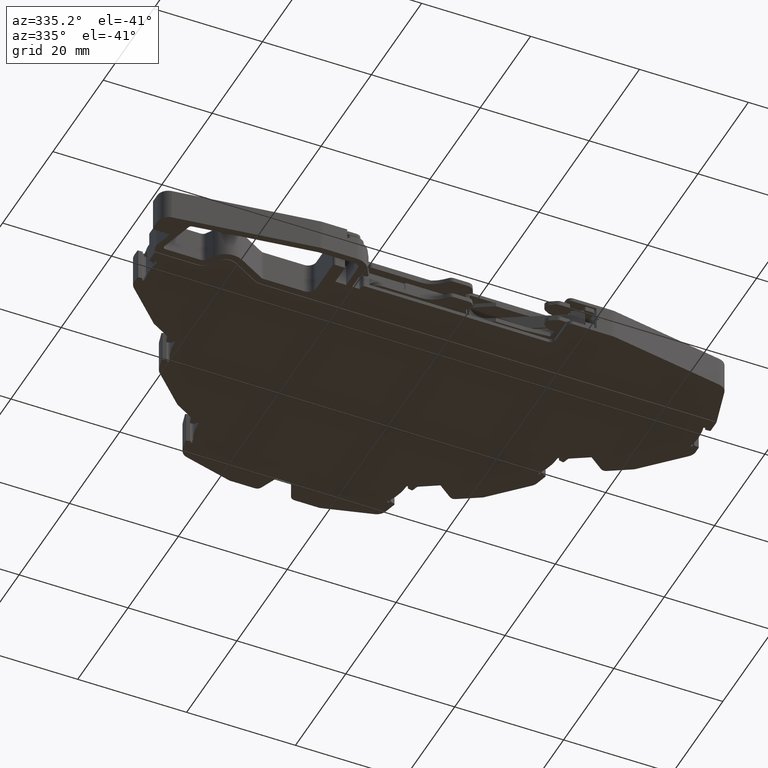
[diagram: clean part render]
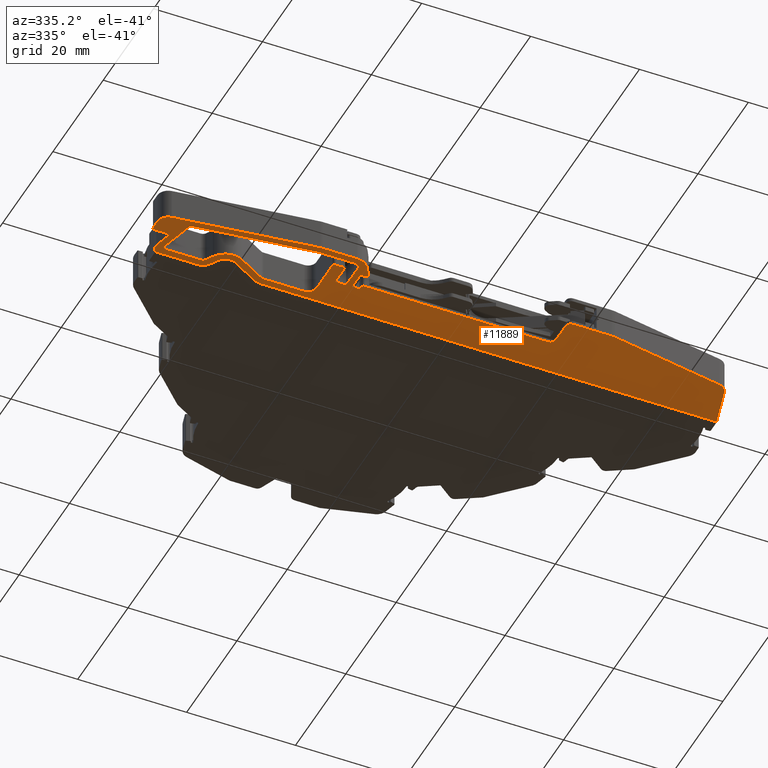
[diagram: same view with one face highlighted and labeled with its STEP entity id]
A machine part, auxiliary view. The second image highlights one B-rep face of the part: STEP entity #11889.
In plain terms, the highlighted planar face has unit normal (0, 0, -1).
Its self-contained STEP definition (entity closure, byte-faithful):
#166 = AXIS2_PLACEMENT_3D ( 'NONE', #25339, #25322, #25329 ) ;
#659 = CIRCLE ( 'NONE', #693, 0.2999995595467930300 ) ;
#693 = AXIS2_PLACEMENT_3D ( 'NONE', #2815, #2849, #2812 ) ;
#2812 = DIRECTION ( 'NONE',  ( -1.000000000000000000, 2.197319628958880000E-013, 0.0000000000000000000 ) ) ;
#2815 = CARTESIAN_POINT ( 'NONE',  ( 241.6200651861885000, 8.621114410905040200, 0.05499999999999949400 ) ) ;
#2849 = DIRECTION ( 'NONE',  ( -0.0000000000000000000, -0.0000000000000000000, 1.000000000000000000 ) ) ;
#3396 = EDGE_CURVE ( 'NONE', #7269, #7301, #14761, .T. ) ;
#6287 = EDGE_LOOP ( 'NONE', ( #7179, #7168, #7187, #7162, #7165, #7169, #7190, #7171, #7159, #7170, #7195, #7191, #7154, #7157, #7196, #7174, #7160, #7161, #7211, #7199, #6711, #6713, #6707, #6699, #6726, #6735, #6680, #6677, #6717, #6692, #6736, #6684, #6731, #6698, #6720, #6721 ) ) ;
#6330 = EDGE_LOOP ( 'NONE', ( #6714, #6751, #6785, #6766, #6747, #6716, #6724, #6790, #6746, #6694, #6725, #6683, #6787, #6688, #6695, #6791, #6753, #6789, #6687, #6764, #6729 ) ) ;
#6677 = ORIENTED_EDGE ( 'NONE', *, *, #3396, .F. ) ;
#6680 = ORIENTED_EDGE ( 'NONE', *, *, #10632, .F. ) ;
#6683 = ORIENTED_EDGE ( 'NONE', *, *, #10714, .F. ) ;
#6684 = ORIENTED_EDGE ( 'NONE', *, *, #10649, .F. ) ;
#6687 = ORIENTED_EDGE ( 'NONE', *, *, #10696, .F. ) ;
#6688 = ORIENTED_EDGE ( 'NONE', *, *, #10688, .F. ) ;
#6692 = ORIENTED_EDGE ( 'NONE', *, *, #10567, .F. ) ;
#6694 = ORIENTED_EDGE ( 'NONE', *, *, #10711, .F. ) ;
#6695 = ORIENTED_EDGE ( 'NONE', *, *, #10729, .F. ) ;
#6698 = ORIENTED_EDGE ( 'NONE', *, *, #10634, .F. ) ;
#6699 = ORIENTED_EDGE ( 'NONE', *, *, #10565, .F. ) ;
#6707 = ORIENTED_EDGE ( 'NONE', *, *, #10656, .T. ) ;
#6711 = ORIENTED_EDGE ( 'NONE', *, *, #10672, .F. ) ;
#6713 = ORIENTED_EDGE ( 'NONE', *, *, #10646, .F. ) ;
#6714 = ORIENTED_EDGE ( 'NONE', *, *, #10622, .F. ) ;
#6716 = ORIENTED_EDGE ( 'NONE', *, *, #10650, .F. ) ;
#6717 = ORIENTED_EDGE ( 'NONE', *, *, #10626, .F. ) ;
#6720 = ORIENTED_EDGE ( 'NONE', *, *, #10653, .F. ) ;
#6721 = ORIENTED_EDGE ( 'NONE', *, *, #10677, .F. ) ;
#6724 = ORIENTED_EDGE ( 'NONE', *, *, #10655, .F. ) ;
#6725 = ORIENTED_EDGE ( 'NONE', *, *, #10685, .T. ) ;
#6726 = ORIENTED_EDGE ( 'NONE', *, *, #10618, .F. ) ;
#6729 = ORIENTED_EDGE ( 'NONE', *, *, #10681, .F. ) ;
#6731 = ORIENTED_EDGE ( 'NONE', *, *, #10647, .T. ) ;
#6735 = ORIENTED_EDGE ( 'NONE', *, *, #10630, .F. ) ;
#6736 = ORIENTED_EDGE ( 'NONE', *, *, #10574, .F. ) ;
#6746 = ORIENTED_EDGE ( 'NONE', *, *, #10720, .F. ) ;
#6747 = ORIENTED_EDGE ( 'NONE', *, *, #10659, .F. ) ;
#6751 = ORIENTED_EDGE ( 'NONE', *, *, #10615, .T. ) ;
#6753 = ORIENTED_EDGE ( 'NONE', *, *, #10687, .T. ) ;
#6764 = ORIENTED_EDGE ( 'NONE', *, *, #10680, .F. ) ;
#6766 = ORIENTED_EDGE ( 'NONE', *, *, #10668, .F. ) ;
#6785 = ORIENTED_EDGE ( 'NONE', *, *, #10654, .T. ) ;
#6787 = ORIENTED_EDGE ( 'NONE', *, *, #10712, .F. ) ;
#6789 = ORIENTED_EDGE ( 'NONE', *, *, #10709, .F. ) ;
#6790 = ORIENTED_EDGE ( 'NONE', *, *, #10726, .F. ) ;
#6791 = ORIENTED_EDGE ( 'NONE', *, *, #10692, .F. ) ;
#7154 = ORIENTED_EDGE ( 'NONE', *, *, #10667, .F. ) ;
#7157 = ORIENTED_EDGE ( 'NONE', *, *, #10633, .T. ) ;
#7159 = ORIENTED_EDGE ( 'NONE', *, *, #10665, .F. ) ;
#7160 = ORIENTED_EDGE ( 'NONE', *, *, #12394, .F. ) ;
#7161 = ORIENTED_EDGE ( 'NONE', *, *, #10645, .F. ) ;
#7162 = ORIENTED_EDGE ( 'NONE', *, *, #10623, .F. ) ;
#7165 = ORIENTED_EDGE ( 'NONE', *, *, #10658, .F. ) ;
#7168 = ORIENTED_EDGE ( 'NONE', *, *, #10669, .T. ) ;
#7169 = ORIENTED_EDGE ( 'NONE', *, *, #10625, .F. ) ;
#7170 = ORIENTED_EDGE ( 'NONE', *, *, #10616, .F. ) ;
#7171 = ORIENTED_EDGE ( 'NONE', *, *, #10635, .T. ) ;
#7174 = ORIENTED_EDGE ( 'NONE', *, *, #10670, .F. ) ;
#7179 = ORIENTED_EDGE ( 'NONE', *, *, #10664, .F. ) ;
#7187 = ORIENTED_EDGE ( 'NONE', *, *, #10663, .F. ) ;
#7190 = ORIENTED_EDGE ( 'NONE', *, *, #10570, .F. ) ;
#7191 = ORIENTED_EDGE ( 'NONE', *, *, #10637, .F. ) ;
#7195 = ORIENTED_EDGE ( 'NONE', *, *, #10619, .F. ) ;
#7196 = ORIENTED_EDGE ( 'NONE', *, *, #10643, .F. ) ;
#7199 = ORIENTED_EDGE ( 'NONE', *, *, #10617, .F. ) ;
#7211 = ORIENTED_EDGE ( 'NONE', *, *, #10673, .F. ) ;
#7269 = VERTEX_POINT ( 'NONE', #18029 ) ;
#7301 = VERTEX_POINT ( 'NONE', #18046 ) ;
#7340 = VERTEX_POINT ( 'NONE', #18090 ) ;
#7345 = VERTEX_POINT ( 'NONE', #18110 ) ;
#7473 = VERTEX_POINT ( 'NONE', #18220 ) ;
#7474 = VERTEX_POINT ( 'NONE', #18241 ) ;
#7475 = VERTEX_POINT ( 'NONE', #18195 ) ;
#7488 = VERTEX_POINT ( 'NONE', #18202 ) ;
#7496 = VERTEX_POINT ( 'NONE', #18212 ) ;
#7497 = VERTEX_POINT ( 'NONE', #18231 ) ;
#7504 = VERTEX_POINT ( 'NONE', #18246 ) ;
#7509 = VERTEX_POINT ( 'NONE', #18235 ) ;
#7510 = VERTEX_POINT ( 'NONE', #18236 ) ;
#7513 = VERTEX_POINT ( 'NONE', #18192 ) ;
#7536 = VERTEX_POINT ( 'NONE', #18252 ) ;
#7537 = VERTEX_POINT ( 'NONE', #18289 ) ;
#7538 = VERTEX_POINT ( 'NONE', #18290 ) ;
#7544 = VERTEX_POINT ( 'NONE', #18310 ) ;
#7546 = VERTEX_POINT ( 'NONE', #18280 ) ;
#7547 = VERTEX_POINT ( 'NONE', #18282 ) ;
#7548 = VERTEX_POINT ( 'NONE', #18276 ) ;
#7553 = VERTEX_POINT ( 'NONE', #18308 ) ;
#7554 = VERTEX_POINT ( 'NONE', #18285 ) ;
#7555 = VERTEX_POINT ( 'NONE', #18306 ) ;
#7560 = VERTEX_POINT ( 'NONE', #18298 ) ;
#7561 = VERTEX_POINT ( 'NONE', #18273 ) ;
#7563 = VERTEX_POINT ( 'NONE', #18313 ) ;
#7567 = VERTEX_POINT ( 'NONE', #18302 ) ;
#7568 = VERTEX_POINT ( 'NONE', #18266 ) ;
#7570 = VERTEX_POINT ( 'NONE', #18251 ) ;
#7572 = VERTEX_POINT ( 'NONE', #18262 ) ;
#7574 = VERTEX_POINT ( 'NONE', #18258 ) ;
#7577 = VERTEX_POINT ( 'NONE', #18268 ) ;
#7578 = VERTEX_POINT ( 'NONE', #18261 ) ;
#7579 = VERTEX_POINT ( 'NONE', #18270 ) ;
#7581 = VERTEX_POINT ( 'NONE', #18272 ) ;
#7583 = VERTEX_POINT ( 'NONE', #18326 ) ;
#7584 = VERTEX_POINT ( 'NONE', #18325 ) ;
#7588 = VERTEX_POINT ( 'NONE', #18344 ) ;
#7594 = VERTEX_POINT ( 'NONE', #18364 ) ;
#7595 = VERTEX_POINT ( 'NONE', #18331 ) ;
#7596 = VERTEX_POINT ( 'NONE', #18333 ) ;
#7597 = VERTEX_POINT ( 'NONE', #18360 ) ;
#7598 = VERTEX_POINT ( 'NONE', #18328 ) ;
#7606 = VERTEX_POINT ( 'NONE', #18334 ) ;
#7614 = VERTEX_POINT ( 'NONE', #18350 ) ;
#7616 = VERTEX_POINT ( 'NONE', #18368 ) ;
#7618 = VERTEX_POINT ( 'NONE', #18370 ) ;
#7623 = VERTEX_POINT ( 'NONE', #18355 ) ;
#7624 = VERTEX_POINT ( 'NONE', #18372 ) ;
#7626 = VERTEX_POINT ( 'NONE', #18378 ) ;
#7629 = VERTEX_POINT ( 'NONE', #18349 ) ;
#7630 = VERTEX_POINT ( 'NONE', #18347 ) ;
#7642 = VERTEX_POINT ( 'NONE', #18348 ) ;
#7646 = VERTEX_POINT ( 'NONE', #18432 ) ;
#7650 = VERTEX_POINT ( 'NONE', #18416 ) ;
#7654 = VERTEX_POINT ( 'NONE', #18439 ) ;
#10565 = EDGE_CURVE ( 'NONE', #7488, #7537, #19617, .T. ) ;
#10567 = EDGE_CURVE ( 'NONE', #7597, #7574, #19620, .T. ) ;
#10570 = EDGE_CURVE ( 'NONE', #7547, #7475, #19665, .T. ) ;
#10574 = EDGE_CURVE ( 'NONE', #7583, #7597, #15579, .T. ) ;
#10615 = EDGE_CURVE ( 'NONE', #7510, #7560, #15651, .T. ) ;
#10616 = EDGE_CURVE ( 'NONE', #7496, #7563, #15648, .T. ) ;
#10617 = EDGE_CURVE ( 'NONE', #7598, #7497, #19822, .T. ) ;
#10618 = EDGE_CURVE ( 'NONE', #7544, #7488, #15655, .T. ) ;
#10619 = EDGE_CURVE ( 'NONE', #7509, #7496, #19820, .T. ) ;
#10622 = EDGE_CURVE ( 'NONE', #7510, #7650, #19826, .T. ) ;
#10623 = EDGE_CURVE ( 'NONE', #7584, #7554, #15672, .T. ) ;
#10625 = EDGE_CURVE ( 'NONE', #7475, #7572, #15677, .T. ) ;
#10626 = EDGE_CURVE ( 'NONE', #7574, #7269, #15678, .T. ) ;
#10630 = EDGE_CURVE ( 'NONE', #7555, #7544, #19882, .T. ) ;
#10632 = EDGE_CURVE ( 'NONE', #7301, #7555, #19876, .T. ) ;
#10633 = EDGE_CURVE ( 'NONE', #7513, #7504, #15675, .T. ) ;
#10634 = EDGE_CURVE ( 'NONE', #7568, #7548, #19850, .T. ) ;
#10635 = EDGE_CURVE ( 'NONE', #7547, #7546, #15633, .T. ) ;
#10637 = EDGE_CURVE ( 'NONE', #7536, #7509, #19868, .T. ) ;
#10643 = EDGE_CURVE ( 'NONE', #7595, #7504, #19913, .T. ) ;
#10645 = EDGE_CURVE ( 'NONE', #7561, #7345, #19916, .T. ) ;
#10646 = EDGE_CURVE ( 'NONE', #7473, #7594, #19891, .T. ) ;
#10647 = EDGE_CURVE ( 'NONE', #7596, #7548, #15726, .T. ) ;
#10649 = EDGE_CURVE ( 'NONE', #7596, #7583, #19903, .T. ) ;
#10650 = EDGE_CURVE ( 'NONE', #7474, #7614, #15697, .T. ) ;
#10653 = EDGE_CURVE ( 'NONE', #7579, #7568, #15733, .T. ) ;
#10654 = EDGE_CURVE ( 'NONE', #7560, #7616, #19907, .T. ) ;
#10655 = EDGE_CURVE ( 'NONE', #7553, #7474, #19895, .T. ) ;
#10656 = EDGE_CURVE ( 'NONE', #7473, #7537, #15740, .T. ) ;
#10658 = EDGE_CURVE ( 'NONE', #7572, #7584, #19973, .T. ) ;
#10659 = EDGE_CURVE ( 'NONE', #7614, #7629, #19966, .T. ) ;
#10663 = EDGE_CURVE ( 'NONE', #7554, #7570, #19965, .T. ) ;
#10664 = EDGE_CURVE ( 'NONE', #7567, #7538, #19936, .T. ) ;
#10665 = EDGE_CURVE ( 'NONE', #7563, #7546, #19975, .T. ) ;
#10667 = EDGE_CURVE ( 'NONE', #7513, #7536, #19952, .T. ) ;
#10668 = EDGE_CURVE ( 'NONE', #7629, #7616, #15706, .T. ) ;
#10669 = EDGE_CURVE ( 'NONE', #7567, #7570, #15701, .T. ) ;
#10670 = EDGE_CURVE ( 'NONE', #7340, #7595, #15696, .T. ) ;
#10672 = EDGE_CURVE ( 'NONE', #7594, #7598, #15742, .T. ) ;
#10673 = EDGE_CURVE ( 'NONE', #7497, #7561, #15737, .T. ) ;
#10677 = EDGE_CURVE ( 'NONE', #7538, #7579, #19982, .T. ) ;
#10680 = EDGE_CURVE ( 'NONE', #7646, #7626, #20008, .T. ) ;
#10681 = EDGE_CURVE ( 'NONE', #7650, #7646, #15705, .T. ) ;
#10685 = EDGE_CURVE ( 'NONE', #7624, #7578, #15775, .T. ) ;
#10687 = EDGE_CURVE ( 'NONE', #7606, #7630, #15767, .T. ) ;
#10688 = EDGE_CURVE ( 'NONE', #7577, #7654, #20032, .T. ) ;
#10692 = EDGE_CURVE ( 'NONE', #7606, #7588, #20026, .T. ) ;
#10696 = EDGE_CURVE ( 'NONE', #7626, #7642, #15774, .T. ) ;
#10709 = EDGE_CURVE ( 'NONE', #7642, #7630, #20067, .T. ) ;
#10711 = EDGE_CURVE ( 'NONE', #7624, #7618, #20065, .T. ) ;
#10712 = EDGE_CURVE ( 'NONE', #7654, #7623, #15812, .T. ) ;
#10714 = EDGE_CURVE ( 'NONE', #7623, #7578, #20130, .T. ) ;
#10720 = EDGE_CURVE ( 'NONE', #7618, #7581, #20113, .T. ) ;
#10726 = EDGE_CURVE ( 'NONE', #7581, #7553, #20126, .T. ) ;
#10729 = EDGE_CURVE ( 'NONE', #7588, #7577, #15855, .T. ) ;
#11889 = ADVANCED_FACE ( 'NONE', ( #25314, #25304 ), #25333, .T. ) ;
#12394 = EDGE_CURVE ( 'NONE', #7345, #7340, #659, .T. ) ;
#14761 = CIRCLE ( 'NONE', #14766, 2.000006238983387300 ) ;
#14766 = AXIS2_PLACEMENT_3D ( 'NONE', #16008, #16040, #16050 ) ;
#15568 = VECTOR ( 'NONE', #19636, 1000.000000000000000 ) ;
#15579 = CIRCLE ( 'NONE', #15604, 2.299999999999996300 ) ;
#15602 = VECTOR ( 'NONE', #19672, 1000.000000000000000 ) ;
#15604 = AXIS2_PLACEMENT_3D ( 'NONE', #19689, #19682, #19699 ) ;
#15617 = VECTOR ( 'NONE', #19703, 1000.000000000000000 ) ;
#15633 = CIRCLE ( 'NONE', #15635, 1.000000000000000900 ) ;
#15635 = AXIS2_PLACEMENT_3D ( 'NONE', #19865, #19887, #19845 ) ;
#15638 = VECTOR ( 'NONE', #19866, 1000.000000000000000 ) ;
#15640 = VECTOR ( 'NONE', #19863, 1000.000000000000100 ) ;
#15645 = AXIS2_PLACEMENT_3D ( 'NONE', #19823, #19830, #19824 ) ;
#15648 = CIRCLE ( 'NONE', #15653, 0.5000000000000004400 ) ;
#15651 = CIRCLE ( 'NONE', #15645, 0.5000000000000004400 ) ;
#15653 = AXIS2_PLACEMENT_3D ( 'NONE', #19829, #19813, #19814 ) ;
#15655 = CIRCLE ( 'NONE', #15666, 0.5000012763415606600 ) ;
#15657 = VECTOR ( 'NONE', #19877, 1000.000000000000100 ) ;
#15666 = AXIS2_PLACEMENT_3D ( 'NONE', #19801, #19832, #19840 ) ;
#15667 = VECTOR ( 'NONE', #19804, 1000.000000000000000 ) ;
#15668 = VECTOR ( 'NONE', #19837, 1000.000000000000100 ) ;
#15672 = CIRCLE ( 'NONE', #15691, 4.999999998846815800 ) ;
#15673 = AXIS2_PLACEMENT_3D ( 'NONE', #19842, #19844, #19803 ) ;
#15674 = AXIS2_PLACEMENT_3D ( 'NONE', #19838, #19811, #19859 ) ;
#15675 = CIRCLE ( 'NONE', #15683, 0.3000000000000502300 ) ;
#15677 = CIRCLE ( 'NONE', #15673, 1.000000000000000900 ) ;
#15678 = CIRCLE ( 'NONE', #15674, 2.000006238983387300 ) ;
#15682 = VECTOR ( 'NONE', #19861, 1000.000000000000000 ) ;
#15683 = AXIS2_PLACEMENT_3D ( 'NONE', #19858, #19879, #19862 ) ;
#15689 = VECTOR ( 'NONE', #19828, 1000.000000000000000 ) ;
#15691 = AXIS2_PLACEMENT_3D ( 'NONE', #19817, #19835, #19836 ) ;
#15696 = CIRCLE ( 'NONE', #15755, 0.2999995595467930300 ) ;
#15697 = CIRCLE ( 'NONE', #15752, 1.000000000000000900 ) ;
#15699 = VECTOR ( 'NONE', #19979, 1000.000000000000000 ) ;
#15700 = AXIS2_PLACEMENT_3D ( 'NONE', #19945, #19960, #19944 ) ;
#15701 = CIRCLE ( 'NONE', #15709, 2.000000000000001800 ) ;
#15704 = AXIS2_PLACEMENT_3D ( 'NONE', #20007, #19995, #20006 ) ;
#15705 = CIRCLE ( 'NONE', #15719, 0.4999963659023387600 ) ;
#15706 = CIRCLE ( 'NONE', #15738, 2.999999629623300900 ) ;
#15708 = AXIS2_PLACEMENT_3D ( 'NONE', #19894, #19898, #19900 ) ;
#15709 = AXIS2_PLACEMENT_3D ( 'NONE', #19939, #19943, #19948 ) ;
#15712 = VECTOR ( 'NONE', #19930, 1000.000000000000100 ) ;
#15716 = VECTOR ( 'NONE', #19920, 1000.000000000000100 ) ;
#15718 = VECTOR ( 'NONE', #19968, 1000.000000000000000 ) ;
#15719 = AXIS2_PLACEMENT_3D ( 'NONE', #19988, #19998, #19997 ) ;
#15724 = VECTOR ( 'NONE', #19901, 1000.000000000000100 ) ;
#15726 = CIRCLE ( 'NONE', #15745, 2.200000000000007300 ) ;
#15727 = VECTOR ( 'NONE', #19971, 1000.000000000000000 ) ;
#15729 = VECTOR ( 'NONE', #19942, 1000.000000000000100 ) ;
#15730 = VECTOR ( 'NONE', #19949, 1000.000000000000200 ) ;
#15733 = CIRCLE ( 'NONE', #15708, 2.299999999999996300 ) ;
#15736 = VECTOR ( 'NONE', #19961, 1000.000000000000200 ) ;
#15737 = CIRCLE ( 'NONE', #15757, 3.000000000000058200 ) ;
#15738 = AXIS2_PLACEMENT_3D ( 'NONE', #19972, #19955, #19951 ) ;
#15740 = CIRCLE ( 'NONE', #15700, 2.000000000000001800 ) ;
#15742 = CIRCLE ( 'NONE', #15704, 4.200000113546070500 ) ;
#15744 = VECTOR ( 'NONE', #19931, 1000.000000000000100 ) ;
#15745 = AXIS2_PLACEMENT_3D ( 'NONE', #19902, #19927, #19905 ) ;
#15747 = VECTOR ( 'NONE', #19906, 1000.000000000000100 ) ;
#15748 = VECTOR ( 'NONE', #19993, 1000.000000000000000 ) ;
#15751 = VECTOR ( 'NONE', #19970, 1000.000000000000100 ) ;
#15752 = AXIS2_PLACEMENT_3D ( 'NONE', #19932, #19923, #19918 ) ;
#15755 = AXIS2_PLACEMENT_3D ( 'NONE', #19963, #20014, #20015 ) ;
#15756 = VECTOR ( 'NONE', #19892, 999.9999999999998900 ) ;
#15757 = AXIS2_PLACEMENT_3D ( 'NONE', #20004, #20005, #20018 ) ;
#15760 = VECTOR ( 'NONE', #20111, 1000.000000000000000 ) ;
#15763 = VECTOR ( 'NONE', #20043, 1000.000000000000000 ) ;
#15766 = AXIS2_PLACEMENT_3D ( 'NONE', #20050, #20027, #20057 ) ;
#15767 = CIRCLE ( 'NONE', #15806, 3.500000705665557100 ) ;
#15772 = VECTOR ( 'NONE', #20097, 1000.000000000000100 ) ;
#15774 = CIRCLE ( 'NONE', #15766, 1.000000000000000900 ) ;
#15775 = CIRCLE ( 'NONE', #15804, 0.4999999937054799800 ) ;
#15783 = VECTOR ( 'NONE', #20115, 1000.000000000000000 ) ;
#15789 = VECTOR ( 'NONE', #20068, 1000.000000000000000 ) ;
#15791 = VECTOR ( 'NONE', #20137, 999.9999999999998900 ) ;
#15804 = AXIS2_PLACEMENT_3D ( 'NONE', #20042, #20058, #20029 ) ;
#15806 = AXIS2_PLACEMENT_3D ( 'NONE', #20025, #20054, #20059 ) ;
#15812 = CIRCLE ( 'NONE', #15819, 1.500000000000001300 ) ;
#15819 = AXIS2_PLACEMENT_3D ( 'NONE', #20072, #20083, #20142 ) ;
#15820 = VECTOR ( 'NONE', #20045, 1000.000000000000000 ) ;
#15841 = AXIS2_PLACEMENT_3D ( 'NONE', #20188, #20173, #20190 ) ;
#15855 = CIRCLE ( 'NONE', #15841, 0.9999999196216302600 ) ;
#16008 = CARTESIAN_POINT ( 'NONE',  ( 208.5687325803994800, 16.63790005086045200, 0.05499999999999906400 ) ) ;
#16040 = DIRECTION ( 'NONE',  ( -0.0000000000000000000, -0.0000000000000000000, 1.000000000000000000 ) ) ;
#16050 = DIRECTION ( 'NONE',  ( -1.000000000000000000, 0.0000000000000000000, 0.0000000000000000000 ) ) ;
#18029 = CARTESIAN_POINT ( 'NONE',  ( 206.5687263414161000, 16.63790005086045200, 0.05499999999999906400 ) ) ;
#18046 = CARTESIAN_POINT ( 'NONE',  ( 206.6368599254679700, 16.12032063474665100, 0.05499999999999949400 ) ) ;
#18090 = CARTESIAN_POINT ( 'NONE',  ( 241.9200647457352900, 8.621114410905040200, 0.05499999999999949400 ) ) ;
#18110 = CARTESIAN_POINT ( 'NONE',  ( 241.8798730676875000, 8.471115742780639800, 0.05499999999999949400 ) ) ;
#18192 = CARTESIAN_POINT ( 'NONE',  ( 240.6275560123945100, 9.352473559638649900, 0.05499999999999949400 ) ) ;
#18195 = CARTESIAN_POINT ( 'NONE',  ( 277.1275590747290500, 6.453652283857839400, 0.05499999999999949400 ) ) ;
#18202 = CARTESIAN_POINT ( 'NONE',  ( 204.1886587459640100, 12.43240244855884000, 0.05499999999999949400 ) ) ;
#18212 = CARTESIAN_POINT ( 'NONE',  ( 241.9775479276259800, 11.77553484429126100, 0.05499999999999949400 ) ) ;
#18220 = CARTESIAN_POINT ( 'NONE',  ( 205.9276064086141400, 8.863850596621729100, 0.05499999999999949400 ) ) ;
#18231 = CARTESIAN_POINT ( 'NONE',  ( 238.4087706958260100, 5.453654139633139900, 0.05499999999999949400 ) ) ;
#18235 = CARTESIAN_POINT ( 'NONE',  ( 241.9775479276259800, 12.25791767009104500, 0.05499999999999949400 ) ) ;
#18236 = CARTESIAN_POINT ( 'NONE',  ( 209.5432540790573300, 9.909526677594010700, 0.05499999999999949400 ) ) ;
#18241 = CARTESIAN_POINT ( 'NONE',  ( 239.5275600996530200, 7.653654132609679200, 0.05499999999999949400 ) ) ;
#18246 = CARTESIAN_POINT ( 'NONE',  ( 240.8754631642745200, 9.057030910438909300, 0.05499999999999949400 ) ) ;
#18251 = CARTESIAN_POINT ( 'NONE',  ( 306.6473301740173300, 9.183620067246197400, 0.05499999999999949400 ) ) ;
#18252 = CARTESIAN_POINT ( 'NONE',  ( 240.6275564023443400, 12.25791767009104500, 0.05499999999999949400 ) ) ;
#18258 = CARTESIAN_POINT ( 'NONE',  ( 207.0624729436524900, 17.95365339502480100, 0.05499999999999949400 ) ) ;
#18261 = CARTESIAN_POINT ( 'NONE',  ( 235.3775523067069700, 8.888774643417500300, 0.05499999999999949400 ) ) ;
#18262 = CARTESIAN_POINT ( 'NONE',  ( 278.1275590747290500, 5.453652283857860700, 0.05499999999999949400 ) ) ;
#18266 = CARTESIAN_POINT ( 'NONE',  ( 225.2282248565720100, 17.64550302038740200, 0.05499999999999898000 ) ) ;
#18268 = CARTESIAN_POINT ( 'NONE',  ( 226.3782508702160200, 16.65365165461454900, 0.05499999999999949400 ) ) ;
#18270 = CARTESIAN_POINT ( 'NONE',  ( 226.3782401042720100, 17.95365339502480100, 0.05499999999999898000 ) ) ;
#18272 = CARTESIAN_POINT ( 'NONE',  ( 237.5275604103144900, 12.25791767009104500, 0.05499999999999949400 ) ) ;
#18273 = CARTESIAN_POINT ( 'NONE',  ( 241.0037655319870300, 6.953651671632250100, 0.05499999999999949400 ) ) ;
#18276 = CARTESIAN_POINT ( 'NONE',  ( 220.4452670665749800, 14.88401223435410100, 0.05499999999999898000 ) ) ;
#18280 = CARTESIAN_POINT ( 'NONE',  ( 276.1275589604314900, 11.27553869041491900, 0.05499999999999949400 ) ) ;
#18282 = CARTESIAN_POINT ( 'NONE',  ( 277.1275590747290500, 10.27553869041482000, 0.05499999999999949400 ) ) ;
#18285 = CARTESIAN_POINT ( 'NONE',  ( 285.9244377300924500, 5.529613790183530500, 0.05499999999999949400 ) ) ;
#18289 = CARTESIAN_POINT ( 'NONE',  ( 204.1886587459640100, 10.84674032556888400, 0.05499999999999949400 ) ) ;
#18290 = CARTESIAN_POINT ( 'NONE',  ( 310.1925392372684800, 17.95365339502485100, 0.05499999999999898000 ) ) ;
#18298 = CARTESIAN_POINT ( 'NONE',  ( 209.9609562340940600, 9.543205107083123200, 0.05499999999999949400 ) ) ;
#18302 = CARTESIAN_POINT ( 'NONE',  ( 308.2318994350256400, 10.63564999956065700, 0.05499999999999949400 ) ) ;
#18306 = CARTESIAN_POINT ( 'NONE',  ( 207.4909532956220100, 12.93240413951319900, 0.05499999999999949400 ) ) ;
#18308 = CARTESIAN_POINT ( 'NONE',  ( 239.5275600392068600, 12.25791767009104500, 0.05499999999999949400 ) ) ;
#18310 = CARTESIAN_POINT ( 'NONE',  ( 204.6886605678589900, 12.93240326027173900, 0.05499999999999949400 ) ) ;
#18313 = CARTESIAN_POINT ( 'NONE',  ( 242.4775479847745000, 11.27553484429126100, 0.05499999999999949400 ) ) ;
#18325 = CARTESIAN_POINT ( 'NONE',  ( 285.0561968460980300, 5.453652506788160700, 0.05499999999999949400 ) ) ;
#18326 = CARTESIAN_POINT ( 'NONE',  ( 216.7965935278365100, 16.80365911324700100, 0.05499999999999898000 ) ) ;
#18328 = CARTESIAN_POINT ( 'NONE',  ( 232.1059091984614900, 5.453654139633139900, 0.05499999999999949400 ) ) ;
#18331 = CARTESIAN_POINT ( 'NONE',  ( 241.6721594874325100, 8.916556316372300700, 0.05499999999999949400 ) ) ;
#18333 = CARTESIAN_POINT ( 'NONE',  ( 217.4399997513805000, 15.68925423248845200, 0.05499999999999898000 ) ) ;
#18334 = CARTESIAN_POINT ( 'NONE',  ( 221.0952826277055000, 13.75818265866324100, 0.05499999999999949400 ) ) ;
#18344 = CARTESIAN_POINT ( 'NONE',  ( 225.8782372434045000, 16.51967324165285300, 0.05499999999999949400 ) ) ;
#18347 = CARTESIAN_POINT ( 'NONE',  ( 216.3141721027669700, 15.03924830687734900, 0.05499999999999949400 ) ) ;
#18348 = CARTESIAN_POINT ( 'NONE',  ( 215.6707658792235000, 16.15365318763595300, 0.05499999999999949400 ) ) ;
#18349 = CARTESIAN_POINT ( 'NONE',  ( 232.1059112750835100, 6.653654132609679200, 0.05499999999999949400 ) ) ;
#18350 = CARTESIAN_POINT ( 'NONE',  ( 238.5275600996530200, 6.653654132609679200, 0.05499999999999949400 ) ) ;
#18355 = CARTESIAN_POINT ( 'NONE',  ( 235.3775560752949900, 15.15365075230115200, 0.05499999999999906400 ) ) ;
#18360 = CARTESIAN_POINT ( 'NONE',  ( 214.8047384005605000, 17.95365339502480100, 0.05499999999999898000 ) ) ;
#18364 = CARTESIAN_POINT ( 'NONE',  ( 231.5576974045550000, 5.489585722834148900, 0.05499999999999949400 ) ) ;
#18368 = CARTESIAN_POINT ( 'NONE',  ( 231.7143380641940100, 6.679318845271971000, 0.05499999999999949400 ) ) ;
#18370 = CARTESIAN_POINT ( 'NONE',  ( 237.5275604103144900, 8.388774649715820400, 0.05499999999999949400 ) ) ;
#18372 = CARTESIAN_POINT ( 'NONE',  ( 235.8775503535499900, 8.388774649715820400, 0.05499999999999949400 ) ) ;
#18378 = CARTESIAN_POINT ( 'NONE',  ( 214.8047422702764800, 16.65365054067099800, 0.05499999999999949400 ) ) ;
#18416 = CARTESIAN_POINT ( 'NONE',  ( 207.9049357748029900, 16.02425239980214800, 0.05499999999999949400 ) ) ;
#18432 = CARTESIAN_POINT ( 'NONE',  ( 208.3878969584819700, 16.65365070145250200, 0.05499999999999949400 ) ) ;
#18439 = CARTESIAN_POINT ( 'NONE',  ( 233.8775560752949900, 16.65365165461454900, 0.05499999999999906400 ) ) ;
#19617 = LINE ( 'NONE', #19619, #15568 ) ;
#19619 = CARTESIAN_POINT ( 'NONE',  ( 204.1886587459640100, -68.63886737773900400, 0.05499999999999949400 ) ) ;
#19620 = LINE ( 'NONE', #19623, #15602 ) ;
#19623 = CARTESIAN_POINT ( 'NONE',  ( 207.0624729436524900, 17.95365339502480100, 0.05499999999999898000 ) ) ;
#19636 = DIRECTION ( 'NONE',  ( 0.0000000000000000000, -1.000000000000000000, 0.0000000000000000000 ) ) ;
#19665 = LINE ( 'NONE', #19690, #15617 ) ;
#19672 = DIRECTION ( 'NONE',  ( -1.000000000000000000, -5.195909874100149800E-016, 0.0000000000000000000 ) ) ;
#19682 = DIRECTION ( 'NONE',  ( -0.0000000000000000000, -0.0000000000000000000, 1.000000000000000000 ) ) ;
#19689 = CARTESIAN_POINT ( 'NONE',  ( 214.8047384005605000, 15.65365339502480100, 0.05499999999999898000 ) ) ;
#19690 = CARTESIAN_POINT ( 'NONE',  ( 277.1275590747290500, -68.63886737773900400, 0.05499999999999949400 ) ) ;
#19699 = DIRECTION ( 'NONE',  ( -1.000000000000000000, 2.564373834052675500E-014, 0.0000000000000000000 ) ) ;
#19703 = DIRECTION ( 'NONE',  ( 0.0000000000000000000, -1.000000000000000000, 0.0000000000000000000 ) ) ;
#19801 = CARTESIAN_POINT ( 'NONE',  ( 204.6886600223049900, 12.43240198393047900, 0.05499999999999949400 ) ) ;
#19803 = DIRECTION ( 'NONE',  ( -1.000000000000000000, 0.0000000000000000000, 0.0000000000000000000 ) ) ;
#19804 = DIRECTION ( 'NONE',  ( 1.000000000000000000, 0.0000000000000000000, 0.0000000000000000000 ) ) ;
#19811 = DIRECTION ( 'NONE',  ( -0.0000000000000000000, -0.0000000000000000000, 1.000000000000000000 ) ) ;
#19813 = DIRECTION ( 'NONE',  ( -0.0000000000000000000, -0.0000000000000000000, 1.000000000000000000 ) ) ;
#19814 = DIRECTION ( 'NONE',  ( -1.000000000000000000, 0.0000000000000000000, 0.0000000000000000000 ) ) ;
#19817 = CARTESIAN_POINT ( 'NONE',  ( 285.0561965604079500, 10.45365250563500000, 0.05499999999999949400 ) ) ;
#19820 = LINE ( 'NONE', #19831, #15689 ) ;
#19822 = LINE ( 'NONE', #19825, #15667 ) ;
#19823 = CARTESIAN_POINT ( 'NONE',  ( 210.0262193125731500, 10.03892754009118200, 0.05499999999999949400 ) ) ;
#19824 = DIRECTION ( 'NONE',  ( -1.000000000000000000, 0.0000000000000000000, 0.0000000000000000000 ) ) ;
#19825 = CARTESIAN_POINT ( 'NONE',  ( 257.5051436719744500, 5.453654139633139900, 0.05499999999999949400 ) ) ;
#19826 = LINE ( 'NONE', #19834, #15668 ) ;
#19828 = DIRECTION ( 'NONE',  ( 0.0000000000000000000, -1.000000000000000000, 0.0000000000000000000 ) ) ;
#19829 = CARTESIAN_POINT ( 'NONE',  ( 242.4775479276260100, 11.77553484429126100, 0.05499999999999949400 ) ) ;
#19830 = DIRECTION ( 'NONE',  ( -0.0000000000000000000, -0.0000000000000000000, 1.000000000000000000 ) ) ;
#19831 = CARTESIAN_POINT ( 'NONE',  ( 241.9775479276259800, -68.63886737773900400, 0.05499999999999949400 ) ) ;
#19832 = DIRECTION ( 'NONE',  ( -0.0000000000000000000, -0.0000000000000000000, 1.000000000000000000 ) ) ;
#19834 = CARTESIAN_POINT ( 'NONE',  ( 198.0569559685459600, 52.78004965650699600, 0.05499999999999898700 ) ) ;
#19835 = DIRECTION ( 'NONE',  ( -0.0000000000000000000, -0.0000000000000000000, 1.000000000000000000 ) ) ;
#19836 = DIRECTION ( 'NONE',  ( -1.000000000000000000, -2.567390745037809300E-014, 0.0000000000000000000 ) ) ;
#19837 = DIRECTION ( 'NONE',  ( -0.2588017249943114200, 0.9659304670316434200, 0.0000000000000000000 ) ) ;
#19838 = CARTESIAN_POINT ( 'NONE',  ( 208.5687325803994800, 16.63790005086045200, 0.05499999999999906400 ) ) ;
#19840 = DIRECTION ( 'NONE',  ( -1.000000000000000000, 0.0000000000000000000, 0.0000000000000000000 ) ) ;
#19842 = CARTESIAN_POINT ( 'NONE',  ( 278.1275590747290500, 6.453652283857839400, 0.05499999999999949400 ) ) ;
#19844 = DIRECTION ( 'NONE',  ( -0.0000000000000000000, -0.0000000000000000000, 1.000000000000000000 ) ) ;
#19845 = DIRECTION ( 'NONE',  ( -1.000000000000000000, 1.734723475976805500E-015, 0.0000000000000000000 ) ) ;
#19850 = LINE ( 'NONE', #19870, #15640 ) ;
#19858 = CARTESIAN_POINT ( 'NONE',  ( 240.9275560123944900, 9.352473519374640900, 0.05499999999999949400 ) ) ;
#19859 = DIRECTION ( 'NONE',  ( -1.000000000000000000, 5.551097806522284500E-014, 0.0000000000000000000 ) ) ;
#19861 = DIRECTION ( 'NONE',  ( -0.9999999999999508200, -3.137579100090939700E-007, 0.0000000000000000000 ) ) ;
#19862 = DIRECTION ( 'NONE',  ( -1.000000000000000000, -1.272130549049445600E-013, 0.0000000000000000000 ) ) ;
#19863 = DIRECTION ( 'NONE',  ( -0.8660215762446127300, -0.5000066294348468600, 0.0000000000000000000 ) ) ;
#19865 = CARTESIAN_POINT ( 'NONE',  ( 276.1275590747290500, 10.27553869041494000, 0.05499999999999949400 ) ) ;
#19866 = DIRECTION ( 'NONE',  ( 1.000000000000000000, 0.0000000000000000000, 0.0000000000000000000 ) ) ;
#19868 = LINE ( 'NONE', #19884, #15638 ) ;
#19870 = CARTESIAN_POINT ( 'NONE',  ( 220.4452670665749800, 14.88401223435410100, 0.05499999999999898000 ) ) ;
#19873 = CARTESIAN_POINT ( 'NONE',  ( 256.4401180783380000, 12.93241949770090000, 0.05499999999999949400 ) ) ;
#19876 = LINE ( 'NONE', #19889, #15657 ) ;
#19877 = DIRECTION ( 'NONE',  ( 0.2587889993887694300, -0.9659338765129627000, 0.0000000000000000000 ) ) ;
#19879 = DIRECTION ( 'NONE',  ( -0.0000000000000000000, -0.0000000000000000000, 1.000000000000000000 ) ) ;
#19882 = LINE ( 'NONE', #19873, #15682 ) ;
#19884 = CARTESIAN_POINT ( 'NONE',  ( 236.7775530938558000, 12.25791767009104300, 0.05499999999999949400 ) ) ;
#19887 = DIRECTION ( 'NONE',  ( -0.0000000000000000000, -0.0000000000000000000, 1.000000000000000000 ) ) ;
#19889 = CARTESIAN_POINT ( 'NONE',  ( 231.1597865121344700, -75.41187585447180200, 0.05499999999999949400 ) ) ;
#19891 = LINE ( 'NONE', #19917, #15744 ) ;
#19892 = DIRECTION ( 'NONE',  ( 0.9914448660161236900, -0.1305261569581771800, 0.0000000000000000000 ) ) ;
#19894 = CARTESIAN_POINT ( 'NONE',  ( 226.3782401042720100, 15.65365339502480100, 0.05499999999999898000 ) ) ;
#19895 = LINE ( 'NONE', #19896, #15724 ) ;
#19896 = CARTESIAN_POINT ( 'NONE',  ( 239.5275602001323700, 3.130607296702529900E-006, 0.05499999999999898700 ) ) ;
#19898 = DIRECTION ( 'NONE',  ( -0.0000000000000000000, -0.0000000000000000000, 1.000000000000000000 ) ) ;
#19899 = CARTESIAN_POINT ( 'NONE',  ( 5.858957915854428900, 36.41373556331820500, 0.05499999999999898700 ) ) ;
#19900 = DIRECTION ( 'NONE',  ( -1.000000000000000000, 5.581284227055823500E-014, 0.0000000000000000000 ) ) ;
#19901 = DIRECTION ( 'NONE',  ( 1.312829692877209800E-008, -0.9999999999999998900, 0.0000000000000000000 ) ) ;
#19902 = CARTESIAN_POINT ( 'NONE',  ( 219.3452524818185100, 16.78925970209224900, 0.05499999999999898000 ) ) ;
#19903 = LINE ( 'NONE', #19919, #15747 ) ;
#19905 = DIRECTION ( 'NONE',  ( -1.000000000000000000, 7.885106708985460800E-015, 0.0000000000000000000 ) ) ;
#19906 = DIRECTION ( 'NONE',  ( -0.5000024861835498100, 0.8660239683809386500, 0.0000000000000000000 ) ) ;
#19907 = LINE ( 'NONE', #19899, #15756 ) ;
#19909 = CARTESIAN_POINT ( 'NONE',  ( 270.2901128077205000, 3.870599332726695400, 0.05499999999999949400 ) ) ;
#19913 = LINE ( 'NONE', #19909, #15712 ) ;
#19914 = CARTESIAN_POINT ( 'NONE',  ( 212.3965979132804900, -42.59545876261290000, 0.05499999999999949400 ) ) ;
#19916 = LINE ( 'NONE', #19914, #15716 ) ;
#19917 = CARTESIAN_POINT ( 'NONE',  ( 266.6560009584955000, 0.8688072468486799400, 0.05499999999999949400 ) ) ;
#19918 = DIRECTION ( 'NONE',  ( -1.000000000000000000, 0.0000000000000000000, 0.0000000000000000000 ) ) ;
#19919 = CARTESIAN_POINT ( 'NONE',  ( 216.7965935278365100, 16.80365911324700100, 0.05499999999999898000 ) ) ;
#19920 = DIRECTION ( 'NONE',  ( 0.4999996771534868100, 0.8660255901798796800, 0.0000000000000000000 ) ) ;
#19923 = DIRECTION ( 'NONE',  ( 0.0000000000000000000, 0.0000000000000000000, -1.000000000000000000 ) ) ;
#19927 = DIRECTION ( 'NONE',  ( -0.0000000000000000000, -0.0000000000000000000, 1.000000000000000000 ) ) ;
#19930 = DIRECTION ( 'NONE',  ( -0.9848086964522768700, 0.1736428270674229800, 0.0000000000000000000 ) ) ;
#19931 = DIRECTION ( 'NONE',  ( 0.9914448644735828200, -0.1305261686749406000, 0.0000000000000000000 ) ) ;
#19932 = CARTESIAN_POINT ( 'NONE',  ( 238.5275600996530200, 7.653654132609679200, 0.05499999999999949400 ) ) ;
#19935 = CARTESIAN_POINT ( 'NONE',  ( 282.1775819742595100, 5.453652299454519800, 0.05499999999999949400 ) ) ;
#19936 = LINE ( 'NONE', #19958, #15730 ) ;
#19938 = CARTESIAN_POINT ( 'NONE',  ( 1.064999999999999900, 6.653654132609679200, 0.05499999999999898700 ) ) ;
#19939 = CARTESIAN_POINT ( 'NONE',  ( 306.3000337061435500, 11.15323555342678000, 0.05499999999999949400 ) ) ;
#19940 = CARTESIAN_POINT ( 'NONE',  ( 8.708948686352020000, -43.35097273053618500, 0.05499999999999898700 ) ) ;
#19942 = DIRECTION ( 'NONE',  ( 0.9848077430902924000, 0.1736482339369004000, 0.0000000000000000000 ) ) ;
#19943 = DIRECTION ( 'NONE',  ( 0.0000000000000000000, 0.0000000000000000000, -1.000000000000000000 ) ) ;
#19944 = DIRECTION ( 'NONE',  ( -1.000000000000000000, 0.0000000000000000000, 0.0000000000000000000 ) ) ;
#19945 = CARTESIAN_POINT ( 'NONE',  ( 206.1886587459640100, 10.84674032556889000, 0.05499999999999949400 ) ) ;
#19948 = DIRECTION ( 'NONE',  ( -1.000000000000000000, 0.0000000000000000000, 0.0000000000000000000 ) ) ;
#19949 = DIRECTION ( 'NONE',  ( 0.2587927769330645200, 0.9659328644410402100, 0.0000000000000000000 ) ) ;
#19951 = DIRECTION ( 'NONE',  ( -1.000000000000000000, 0.0000000000000000000, 0.0000000000000000000 ) ) ;
#19952 = LINE ( 'NONE', #19956, #15736 ) ;
#19955 = DIRECTION ( 'NONE',  ( 0.0000000000000000000, 0.0000000000000000000, -1.000000000000000000 ) ) ;
#19956 = CARTESIAN_POINT ( 'NONE',  ( 240.6275455449140000, -68.63886511253950600, 0.05499999999999949400 ) ) ;
#19958 = CARTESIAN_POINT ( 'NONE',  ( 285.0011332220738600, -76.07218171492525000, 0.05499999999999898700 ) ) ;
#19959 = CARTESIAN_POINT ( 'NONE',  ( 257.5051345379305300, 11.27553656191200000, 0.05499999999999949400 ) ) ;
#19960 = DIRECTION ( 'NONE',  ( 0.0000000000000000000, 0.0000000000000000000, -1.000000000000000000 ) ) ;
#19961 = DIRECTION ( 'NONE',  ( 1.342133762252967600E-007, 0.9999999999999909000, 0.0000000000000000000 ) ) ;
#19963 = CARTESIAN_POINT ( 'NONE',  ( 241.6200651861885000, 8.621114410905040200, 0.05499999999999949400 ) ) ;
#19965 = LINE ( 'NONE', #19940, #15729 ) ;
#19966 = LINE ( 'NONE', #19938, #15727 ) ;
#19968 = DIRECTION ( 'NONE',  ( 1.000000000000000000, 3.851004590712635100E-009, 0.0000000000000000000 ) ) ;
#19970 = DIRECTION ( 'NONE',  ( 0.9999999999999934500, 1.142978427374678400E-007, 0.0000000000000000000 ) ) ;
#19971 = DIRECTION ( 'NONE',  ( -1.000000000000000000, 0.0000000000000000000, 0.0000000000000000000 ) ) ;
#19972 = CARTESIAN_POINT ( 'NONE',  ( 232.1059112750835100, 9.653653762232970300, 0.05499999999999949400 ) ) ;
#19973 = LINE ( 'NONE', #19935, #15718 ) ;
#19975 = LINE ( 'NONE', #19959, #15751 ) ;
#19979 = DIRECTION ( 'NONE',  ( -1.000000000000000000, -3.117545924460120400E-015, 0.0000000000000000000 ) ) ;
#19982 = LINE ( 'NONE', #19986, #15699 ) ;
#19986 = CARTESIAN_POINT ( 'NONE',  ( 303.5153811690519800, 17.95365339502480100, 0.05499999999999898000 ) ) ;
#19988 = CARTESIAN_POINT ( 'NONE',  ( 208.3878969584819700, 16.15365433555015100, 0.05499999999999949400 ) ) ;
#19993 = DIRECTION ( 'NONE',  ( 0.9999999999999995600, -3.004225391225513600E-008, 0.0000000000000000000 ) ) ;
#19995 = DIRECTION ( 'NONE',  ( -0.0000000000000000000, -0.0000000000000000000, 1.000000000000000000 ) ) ;
#19997 = DIRECTION ( 'NONE',  ( -1.000000000000000000, 0.0000000000000000000, 0.0000000000000000000 ) ) ;
#19998 = DIRECTION ( 'NONE',  ( 0.0000000000000000000, 0.0000000000000000000, -1.000000000000000000 ) ) ;
#20003 = CARTESIAN_POINT ( 'NONE',  ( 1.065000500313390000, 16.65365692989956200, 0.05499999999999898700 ) ) ;
#20004 = CARTESIAN_POINT ( 'NONE',  ( 238.4056887614474900, 8.453650703092829800, 0.05499999999999949400 ) ) ;
#20005 = DIRECTION ( 'NONE',  ( -0.0000000000000000000, -0.0000000000000000000, 1.000000000000000000 ) ) ;
#20006 = DIRECTION ( 'NONE',  ( -1.000000000000000000, -2.478176327255632800E-015, 0.0000000000000000000 ) ) ;
#20007 = CARTESIAN_POINT ( 'NONE',  ( 232.1059074267000100, 9.653654253178830300, 0.05499999999999949400 ) ) ;
#20008 = LINE ( 'NONE', #20003, #15748 ) ;
#20014 = DIRECTION ( 'NONE',  ( -0.0000000000000000000, -0.0000000000000000000, 1.000000000000000000 ) ) ;
#20015 = DIRECTION ( 'NONE',  ( -1.000000000000000000, -9.251872121932127000E-014, 0.0000000000000000000 ) ) ;
#20018 = DIRECTION ( 'NONE',  ( -1.000000000000000000, 1.040834085586064100E-014, 0.0000000000000000000 ) ) ;
#20022 = CARTESIAN_POINT ( 'NONE',  ( 1.064999999999999900, 16.65365165461454900, 0.05499999999999898700 ) ) ;
#20025 = CARTESIAN_POINT ( 'NONE',  ( 219.3452566032234800, 16.78925736135439800, 0.05499999999999949400 ) ) ;
#20026 = LINE ( 'NONE', #20039, #15763 ) ;
#20027 = DIRECTION ( 'NONE',  ( 0.0000000000000000000, 0.0000000000000000000, -1.000000000000000000 ) ) ;
#20029 = DIRECTION ( 'NONE',  ( -1.000000000000000000, 0.0000000000000000000, 0.0000000000000000000 ) ) ;
#20032 = LINE ( 'NONE', #20022, #15820 ) ;
#20039 = CARTESIAN_POINT ( 'NONE',  ( 50.11655577435399100, -84.95823470966243500, 0.05499999999999898700 ) ) ;
#20042 = CARTESIAN_POINT ( 'NONE',  ( 235.8775523004125000, 8.888774643417500300, 0.05499999999999949400 ) ) ;
#20043 = DIRECTION ( 'NONE',  ( 0.8660214484722890100, 0.5000068507390259500, 0.0000000000000000000 ) ) ;
#20045 = DIRECTION ( 'NONE',  ( 1.000000000000000000, 0.0000000000000000000, 0.0000000000000000000 ) ) ;
#20050 = CARTESIAN_POINT ( 'NONE',  ( 214.8047420036700100, 15.65365054067105200, 0.05499999999999949400 ) ) ;
#20054 = DIRECTION ( 'NONE',  ( 0.0000000000000000000, 0.0000000000000000000, -1.000000000000000000 ) ) ;
#20057 = DIRECTION ( 'NONE',  ( -1.000000000000000000, 0.0000000000000000000, 0.0000000000000000000 ) ) ;
#20058 = DIRECTION ( 'NONE',  ( 0.0000000000000000000, 0.0000000000000000000, -1.000000000000000000 ) ) ;
#20059 = DIRECTION ( 'NONE',  ( -1.000000000000000000, 0.0000000000000000000, 0.0000000000000000000 ) ) ;
#20065 = LINE ( 'NONE', #20071, #15789 ) ;
#20067 = LINE ( 'NONE', #20079, #15772 ) ;
#20068 = DIRECTION ( 'NONE',  ( 1.000000000000000000, 0.0000000000000000000, 0.0000000000000000000 ) ) ;
#20071 = CARTESIAN_POINT ( 'NONE',  ( 1.064999999999999900, 8.388774649715820400, 0.05499999999999898700 ) ) ;
#20072 = CARTESIAN_POINT ( 'NONE',  ( 233.8775560752949900, 15.15365165461455100, 0.05499999999999906400 ) ) ;
#20079 = CARTESIAN_POINT ( 'NONE',  ( 169.0135510578221000, 96.96578402652996000, 0.05499999999999898700 ) ) ;
#20083 = DIRECTION ( 'NONE',  ( 0.0000000000000000000, 0.0000000000000000000, -1.000000000000000000 ) ) ;
#20097 = DIRECTION ( 'NONE',  ( 0.5000024861834988500, -0.8660239683809679600, 0.0000000000000000000 ) ) ;
#20106 = CARTESIAN_POINT ( 'NONE',  ( 236.7775530938558000, 12.25791767009104300, 0.05499999999999949400 ) ) ;
#20111 = DIRECTION ( 'NONE',  ( 0.0000000000000000000, 1.000000000000000000, 0.0000000000000000000 ) ) ;
#20113 = LINE ( 'NONE', #20117, #15760 ) ;
#20115 = DIRECTION ( 'NONE',  ( 1.000000000000000000, 0.0000000000000000000, 0.0000000000000000000 ) ) ;
#20117 = CARTESIAN_POINT ( 'NONE',  ( 237.5275604103144900, 0.0000000000000000000, 0.05499999999999898700 ) ) ;
#20126 = LINE ( 'NONE', #20106, #15783 ) ;
#20130 = LINE ( 'NONE', #20143, #15791 ) ;
#20137 = DIRECTION ( 'NONE',  ( -6.015422495056100900E-007, -0.9999999999998191400, 0.0000000000000000000 ) ) ;
#20142 = DIRECTION ( 'NONE',  ( -1.000000000000000000, 0.0000000000000000000, 0.0000000000000000000 ) ) ;
#20143 = CARTESIAN_POINT ( 'NONE',  ( 235.3775469596490400, -0.0001409488965855216500, 0.05499999999999898700 ) ) ;
#20173 = DIRECTION ( 'NONE',  ( 0.0000000000000000000, 0.0000000000000000000, -1.000000000000000000 ) ) ;
#20188 = CARTESIAN_POINT ( 'NONE',  ( 226.3782438326495000, 15.65365173501764900, 0.05499999999999949400 ) ) ;
#20190 = DIRECTION ( 'NONE',  ( -1.000000000000000000, 0.0000000000000000000, 0.0000000000000000000 ) ) ;
#25304 = FACE_BOUND ( 'NONE', #6330, .T. ) ;
#25314 = FACE_OUTER_BOUND ( 'NONE', #6287, .T. ) ;
#25322 = DIRECTION ( 'NONE',  ( 0.0000000000000000000, 0.0000000000000000000, -1.000000000000000000 ) ) ;
#25329 = DIRECTION ( 'NONE',  ( -1.000000000000000000, 0.0000000000000000000, 0.0000000000000000000 ) ) ;
#25333 = PLANE ( 'NONE',  #166 ) ;
#25339 = CARTESIAN_POINT ( 'NONE',  ( 1.064999999999999900, 0.0000000000000000000, 0.05499999999999898700 ) ) ;